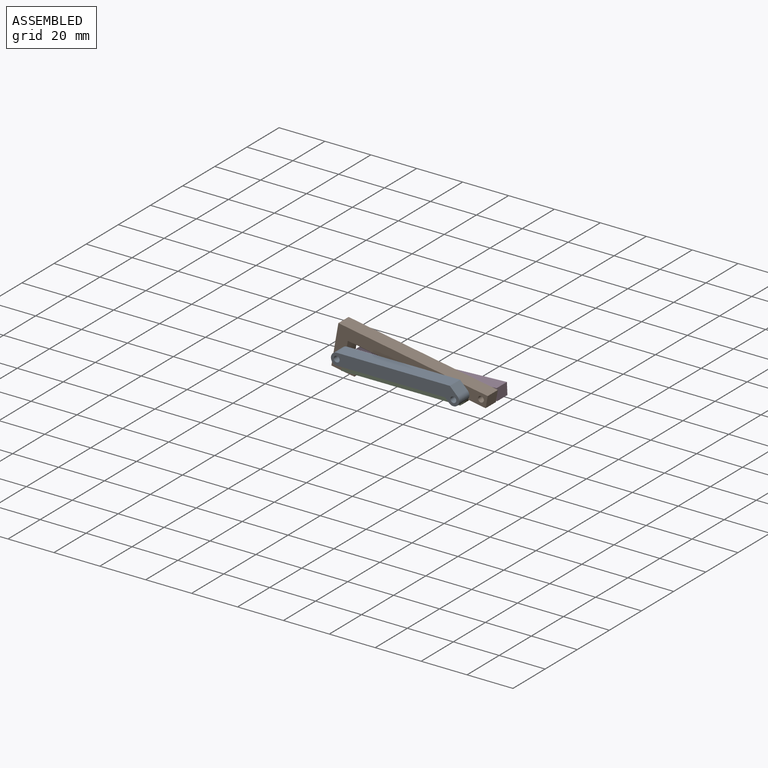
[diagram: assembled view]
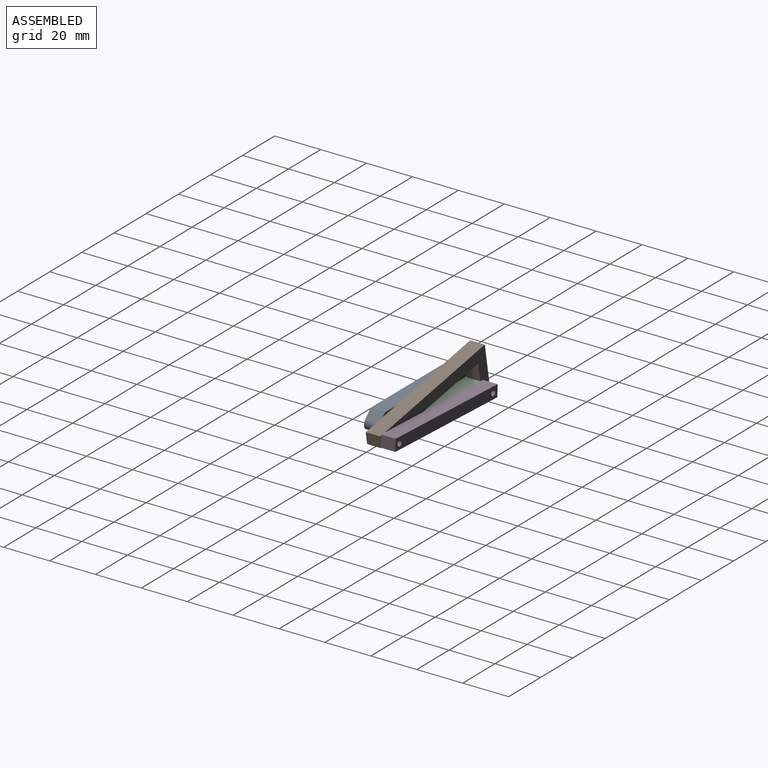
[diagram: assembled view, second angle]
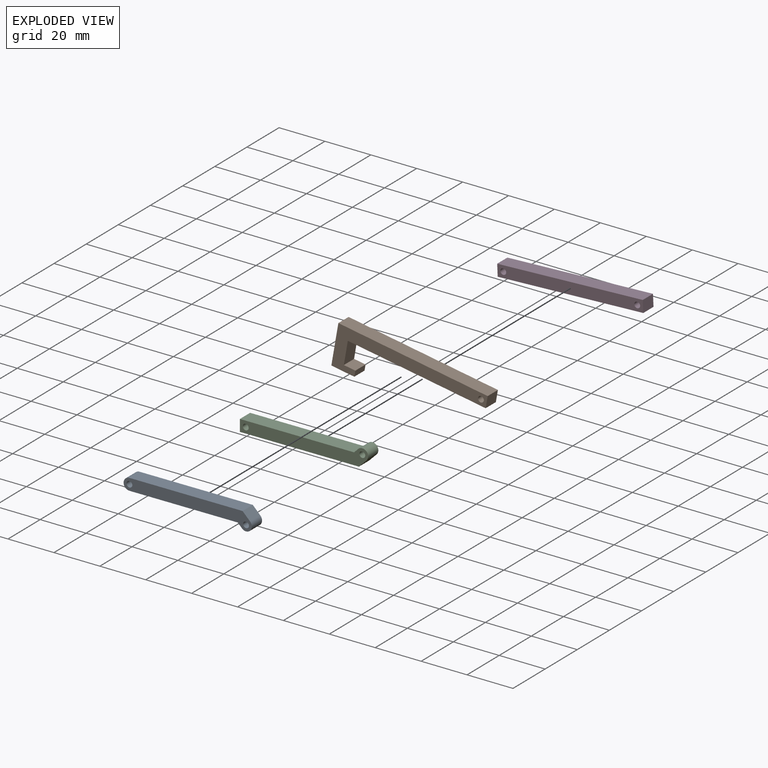
[diagram: exploded view]
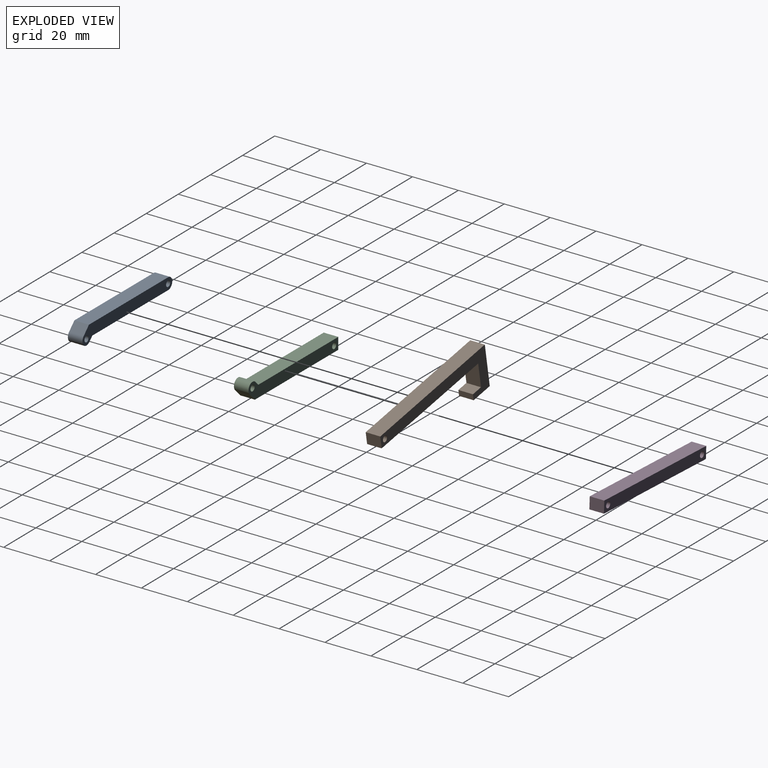
[diagram: exploded view, second angle]
ASSEMBLY  parts=4 mates=6
PART A: 10 faces, bbox 55.9x6.4x7.6 mm
  f0: plane 6.35x1.8mm, normal (-0.71,0,0.71), area 16.1mm2, adj f1,f6,f8,f9
  f1: plane 47.21x6.35mm, normal (0,0,1), area 299.8mm2, adj f0,f2,f8,f9
  f2: cylinder r=2.54mm len=6.35mm, axis (0,1,0), area 50.7mm2, adj f1,f3,f8,f9
  f3: plane 49.31x6.35mm, normal (0,0,-1), area 313.1mm2, adj f2,f4,f8,f9
  f4: plane 6.35x3.28mm, normal (0.71,0,-0.71), area 29.5mm2, adj f3,f6,f8,f9
  f5: cylinder r=1.27mm len=6.35mm, axis (0,1,0), area 50.7mm2, adj f8,f9
  f6: cylinder r=2.54mm len=6.35mm, axis (0,1,0), area 50.7mm2, adj f0,f4,f8,f9
  f7: cylinder r=1.27mm len=6.35mm, axis (0,1,0), area 50.7mm2, adj f8,f9
  f8: plane 55.88x7.62mm, normal (0,-1,0), area 273.5mm2, adj f0,f1,f2,f3,f4,f5,f6,f7
  f9: plane 55.88x7.62mm, normal (0,1,0), area 273.5mm2, adj f0,f1,f2,f3,f4,f5,f6,f7
PART B: 11 faces, bbox 66x6.4x17.8 mm
  f0: plane 17.78x6.35mm, normal (1,0,0), area 112.9mm2, adj f1,f7,f9,f10
  f1: plane 10.16x6.35mm, normal (0,0,1), area 64.5mm2, adj f0,f2,f9,f10
  f2: plane 6.35x2.54mm, normal (-1,0,0), area 16.1mm2, adj f1,f3,f9,f10
  f3: plane 6.35x5.08mm, normal (0,0,-1), area 32.3mm2, adj f2,f4,f9,f10
  f4: plane 10.16x6.35mm, normal (-1,0,0), area 64.5mm2, adj f3,f5,f9,f10
  f5: plane 60.96x6.35mm, normal (0,0,1), area 387.1mm2, adj f4,f6,f9,f10
  f6: plane 6.35x5.08mm, normal (-1,0,0), area 32.3mm2, adj f5,f7,f9,f10
  f7: plane 66.04x6.35mm, normal (0,0,-1), area 419.4mm2, adj f0,f6,f9,f10
  f8: cylinder r=1.27mm len=6.35mm, axis (0,-1,0), area 50.7mm2, adj f9,f10
  f9: plane 66.04x17.78mm, normal (0,1,0), area 407.8mm2, adj f0,f1,f2,f3,f4,f5,f6,f7
  f10: plane 66.04x17.78mm, normal (0,-1,0), area 407.8mm2, adj f0,f1,f2,f3,f4,f5,f6,f7
PART C: 10 faces, bbox 55.9x6.4x7.6 mm
  f0: cylinder r=2.54mm len=6.35mm, axis (0,-1,0), area 50.7mm2, adj f1,f6,f8,f9
  f1: plane 6.35x1.8mm, normal (-0.71,0,0.71), area 16.1mm2, adj f0,f2,f8,f9
  f2: plane 49.75x6.35mm, normal (0,0,1), area 315.9mm2, adj f1,f3,f8,f9
  f3: plane 6.35x5.08mm, normal (-1,0,0), area 32.3mm2, adj f2,f4,f8,f9
  f4: plane 51.85x6.35mm, normal (0,0,-1), area 329.3mm2, adj f3,f6,f8,f9
  f5: cylinder r=1.27mm len=6.35mm, axis (0,-1,0), area 50.7mm2, adj f8,f9
  f6: plane 6.35x3.28mm, normal (0.71,0,-0.71), area 29.5mm2, adj f0,f4,f8,f9
  f7: cylinder r=1.27mm len=6.35mm, axis (0,-1,0), area 50.7mm2, adj f8,f9
  f8: plane 55.88x7.62mm, normal (0,1,0), area 276.3mm2, adj f0,f1,f2,f3,f4,f5,f6,f7
  f9: plane 55.88x7.62mm, normal (0,-1,0), area 276.3mm2, adj f0,f1,f2,f3,f4,f5,f6,f7
PART D: 8 faces, bbox 63.5x6.4x5.1 mm
  f0: plane 6.35x5.08mm, normal (-1,0,0), area 32.3mm2, adj f1,f4,f6,f7
  f1: plane 63.5x6.35mm, normal (0,0,-1), area 403.2mm2, adj f0,f2,f6,f7
  f2: plane 6.35x5.08mm, normal (1,0,0), area 32.3mm2, adj f1,f4,f6,f7
  f3: cylinder r=1.27mm len=6.35mm, axis (0,-1,0), area 50.7mm2, adj f6,f7
  f4: plane 63.5x6.35mm, normal (0,0,1), area 403.2mm2, adj f0,f2,f6,f7
  f5: cylinder r=1.27mm len=6.35mm, axis (0,-1,0), area 50.7mm2, adj f6,f7
  f6: plane 63.5x5.08mm, normal (0,1,0), area 312.4mm2, adj f0,f1,f2,f3,f4,f5
  f7: plane 63.5x5.08mm, normal (0,-1,0), area 312.4mm2, adj f0,f1,f2,f3,f4,f5
PLACE A rot(axis=(-1,0,0),180deg) t=(-13.8,-1.99,26.81)mm
PLACE B rot(axis=(0,-1,0),170.1deg) t=(-10.4,4.36,29.32)mm
PLACE C rot(axis=(0,-1,0),0.2deg) t=(-13.77,4.36,16.64)mm fixed
PLACE D rot(axis=(0,-1,0),2.4deg) t=(-9.89,10.71,17.8)mm fixed
MATE cylindrical B.f8 <-> D.f5  axis (0,-1,0) through (19.19,7.54,21.58)mm
MATE planar A.f8 <-> C.f9  axis (0,1,0) through (-13.32,1.19,24.14)mm
MATE planar B.f9 <-> D.f7  axis (0,1,0) through (-17.07,7.54,26.03)mm
MATE cylindrical C.f0 <-> A.f5  axis (0,-1,0) through (11.61,1.19,21.8)mm
MATE planar D.f7 <-> C.f8  axis (0,-1,0) through (-9.99,7.54,20.34)mm
MATE cylindrical D.f3 <-> C.f5  axis (0,-1,0) through (-39.18,7.54,19.1)mm
